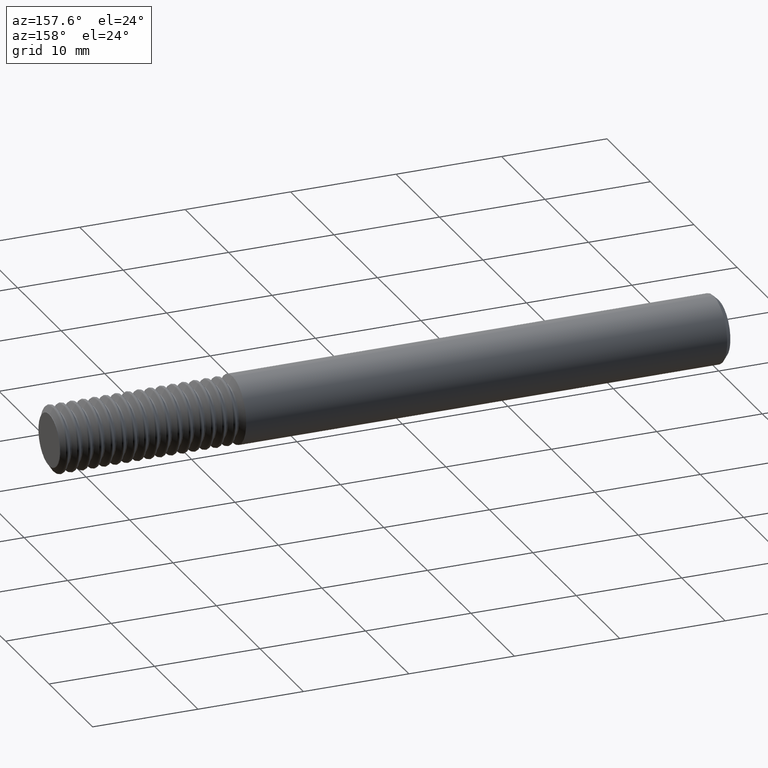
[diagram: clean part render]
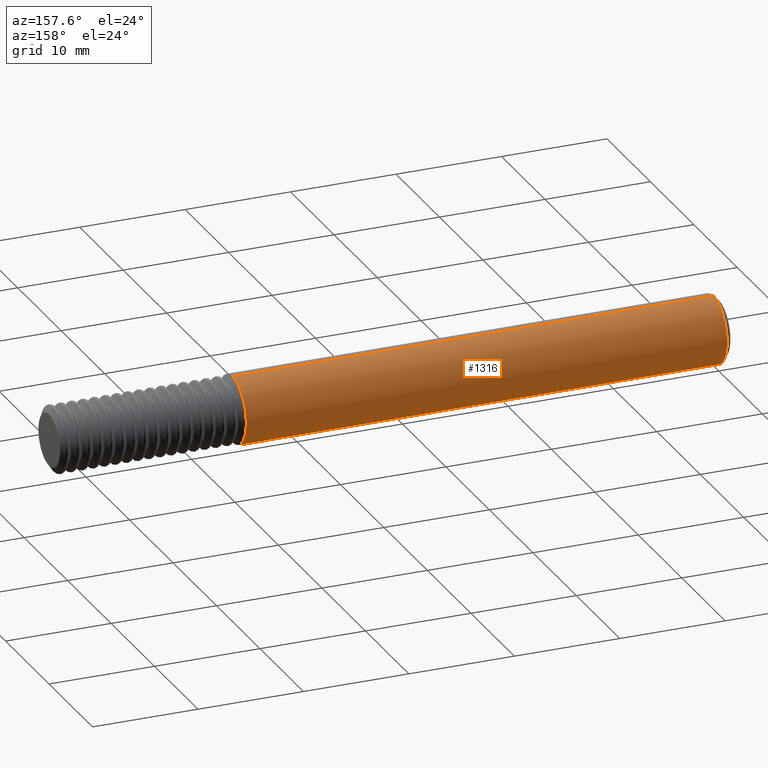
[diagram: same view with one face highlighted and labeled with its STEP entity id]
A machine part, auxiliary view. The second image highlights one B-rep face of the part: STEP entity #1316.
In plain terms, the highlighted cylindrical surface (edge-blend (fillet) strip) has radius 3.1712 mm, axis along (-1, -0, -0).
Its self-contained STEP definition (entity closure, byte-faithful):
#9 = CARTESIAN_POINT ( 'NONE',  ( 1.815703988889129539, 1.528971528735475660E-17, -0.1248500000000004051 ) ) ;
#16 = CARTESIAN_POINT ( 'NONE',  ( 0.01999999999999924061, 0.000000000000000000, 0.000000000000000000 ) ) ;
#253 = DIRECTION ( 'NONE',  ( 1.000000000000000000, -0.000000000000000000, -0.000000000000000000 ) ) ;
#318 = AXIS2_PLACEMENT_3D ( 'NONE', #16, #253, #3539 ) ;
#332 = VECTOR ( 'NONE', #2443, 39.37007874015748143 ) ;
#425 = ORIENTED_EDGE ( 'NONE', *, *, #2368, .T. ) ;
#432 = CARTESIAN_POINT ( 'NONE',  ( 1.850000000000000311, 0.000000000000000000, 0.1248500000000000304 ) ) ;
#453 = DIRECTION ( 'NONE',  ( -1.000000000000000000, -0.000000000000000000, -0.000000000000000000 ) ) ;
#641 = EDGE_CURVE ( 'NONE', #1434, #2311, #3309, .T. ) ;
#929 = DIRECTION ( 'NONE',  ( 0.000000000000000000, 0.000000000000000000, 1.000000000000000000 ) ) ;
#931 = DIRECTION ( 'NONE',  ( 0.000000000000000000, 0.000000000000000000, 1.000000000000000000 ) ) ;
#1175 = CARTESIAN_POINT ( 'NONE',  ( 0.01999999999999924061, 1.528971528735470730E-17, 0.1248500000000000304 ) ) ;
#1288 = CIRCLE ( 'NONE', #318, 0.1248500000000000304 ) ;
#1316 = ADVANCED_FACE ( 'NONE', ( #1861 ), #1846, .T. ) ;
#1334 = CARTESIAN_POINT ( 'NONE',  ( 1.850000000000000311, 0.000000000000000000, 0.000000000000000000 ) ) ;
#1393 = CARTESIAN_POINT ( 'NONE',  ( 1.815703988889129539, 0.000000000000000000, 0.1248500000000004051 ) ) ;
#1416 = DIRECTION ( 'NONE',  ( -1.000000000000000000, -0.000000000000000000, -0.000000000000000000 ) ) ;
#1434 = VERTEX_POINT ( 'NONE', #9 ) ;
#1567 = CIRCLE ( 'NONE', #2783, 0.1248500000000003773 ) ;
#1603 = ORIENTED_EDGE ( 'NONE', *, *, #2324, .T. ) ;
#1705 = CARTESIAN_POINT ( 'NONE',  ( 1.815703988889129539, 0.000000000000000000, 0.000000000000000000 ) ) ;
#1846 = CYLINDRICAL_SURFACE ( 'NONE', #2498, 0.1248500000000000304 ) ;
#1861 = FACE_OUTER_BOUND ( 'NONE', #2820, .T. ) ;
#1912 = CARTESIAN_POINT ( 'NONE',  ( 1.850000000000000311, 1.528971528735470730E-17, -0.1248500000000000304 ) ) ;
#2304 = LINE ( 'NONE', #432, #2450 ) ;
#2311 = VERTEX_POINT ( 'NONE', #3254 ) ;
#2324 = EDGE_CURVE ( 'NONE', #2311, #3407, #1288, .T. ) ;
#2368 = EDGE_CURVE ( 'NONE', #2873, #1434, #1567, .T. ) ;
#2431 = DIRECTION ( 'NONE',  ( -1.000000000000000000, -0.000000000000000000, -0.000000000000000000 ) ) ;
#2443 = DIRECTION ( 'NONE',  ( -1.000000000000000000, -0.000000000000000000, -0.000000000000000000 ) ) ;
#2450 = VECTOR ( 'NONE', #453, 39.37007874015748143 ) ;
#2498 = AXIS2_PLACEMENT_3D ( 'NONE', #1334, #2431, #929 ) ;
#2783 = AXIS2_PLACEMENT_3D ( 'NONE', #1705, #1416, #931 ) ;
#2820 = EDGE_LOOP ( 'NONE', ( #425, #3165, #1603, #2944 ) ) ;
#2873 = VERTEX_POINT ( 'NONE', #1393 ) ;
#2944 = ORIENTED_EDGE ( 'NONE', *, *, #3555, .F. ) ;
#3165 = ORIENTED_EDGE ( 'NONE', *, *, #641, .T. ) ;
#3254 = CARTESIAN_POINT ( 'NONE',  ( 0.01999999999999924061, 0.000000000000000000, -0.1248500000000000304 ) ) ;
#3309 = LINE ( 'NONE', #1912, #332 ) ;
#3407 = VERTEX_POINT ( 'NONE', #1175 ) ;
#3539 = DIRECTION ( 'NONE',  ( 0.000000000000000000, 0.000000000000000000, -1.000000000000000000 ) ) ;
#3555 = EDGE_CURVE ( 'NONE', #2873, #3407, #2304, .T. ) ;